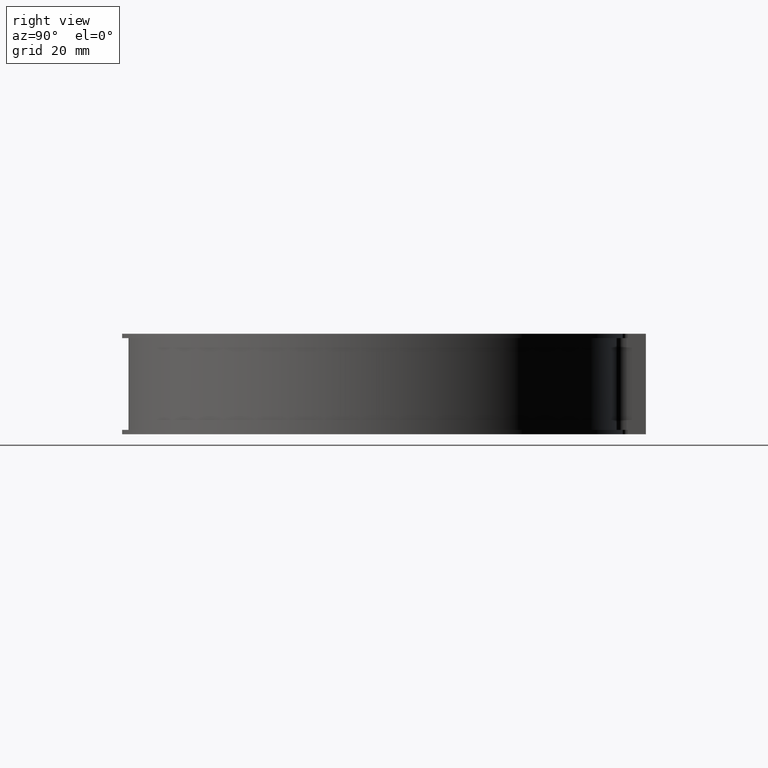
[diagram: clean part render]
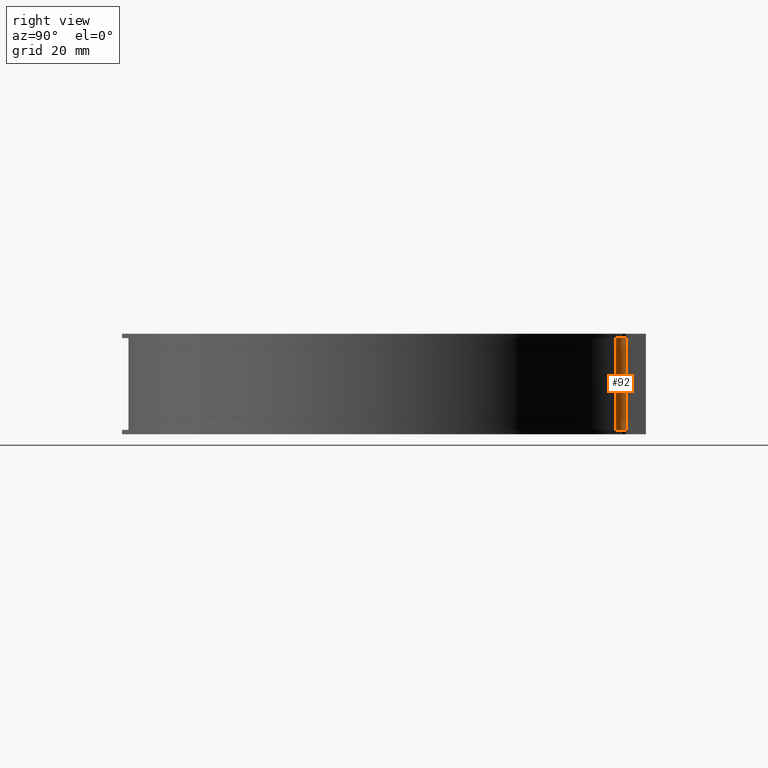
[diagram: same view with one face highlighted and labeled with its STEP entity id]
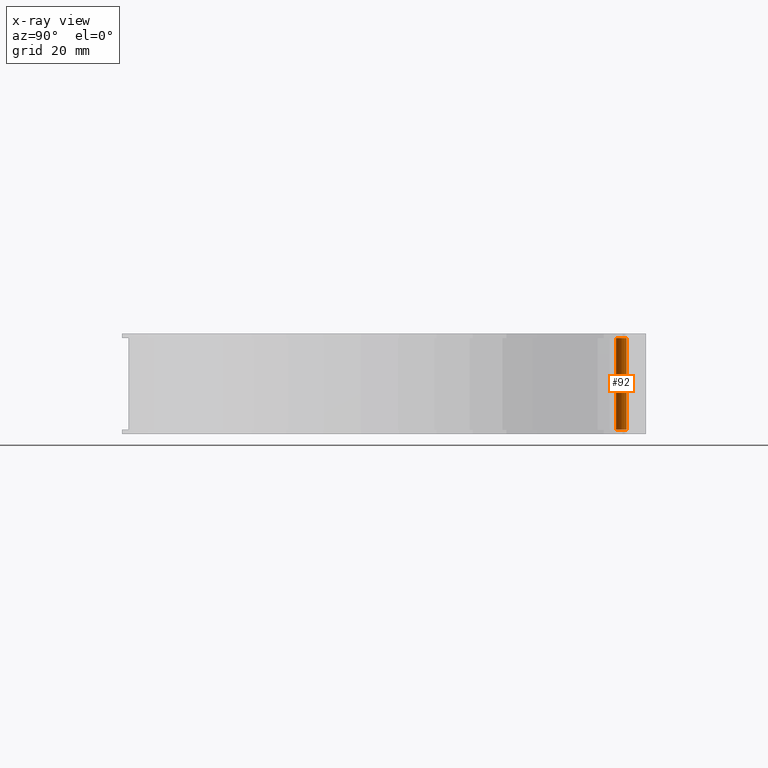
[diagram: x-ray of the same camera — body ghosted, the highlighted face saturated]
A machine part, right view. The second image highlights one B-rep face of the part: STEP entity #92.
The next image is the same camera in x-ray: the body ghosted, the highlighted face saturated — about 0% of this face is hidden behind the body in this view.
In plain terms, the highlighted cylindrical surface (edge-blend (fillet) strip) has radius 3.7 mm, axis along (0, 0, -1).
Its self-contained STEP definition (entity closure, byte-faithful):
#92 = ADVANCED_FACE( '', ( #136 ), #137, .F. );
#136 = FACE_OUTER_BOUND( '', #188, .T. );
#137 = CYLINDRICAL_SURFACE( '', #189, 3.70000000000000 );
#188 = EDGE_LOOP( '', ( #365, #366, #367, #368 ) );
#189 = AXIS2_PLACEMENT_3D( '', #369, #370, #371 );
#365 = ORIENTED_EDGE( '', *, *, #446, .F. );
#366 = ORIENTED_EDGE( '', *, *, #494, .F. );
#367 = ORIENTED_EDGE( '', *, *, #485, .T. );
#368 = ORIENTED_EDGE( '', *, *, #453, .T. );
#369 = CARTESIAN_POINT( '', ( 8.70000000000001, 88.3727899299327, -32.0000000000000 ) );
#370 = DIRECTION( '', ( 0.000000000000000, 0.000000000000000, -1.00000000000000 ) );
#371 = DIRECTION( '', ( -0.0900692840646651, -0.995935501961888, 0.000000000000000 ) );
#446 = EDGE_CURVE( '', #533, #535, #536, .T. );
#453 = EDGE_CURVE( '', #548, #535, #549, .T. );
#485 = EDGE_CURVE( '', #599, #548, #600, .T. );
#494 = EDGE_CURVE( '', #599, #533, #614, .T. );
#533 = VERTEX_POINT( '', #667 );
#535 = VERTEX_POINT( '', #669 );
#536 = CIRCLE( '', #670, 3.70000000000000 );
#548 = VERTEX_POINT( '', #685 );
#549 = LINE( '', #686, #687 );
#599 = VERTEX_POINT( '', #758 );
#600 = CIRCLE( '', #759, 3.70000000000000 );
#614 = LINE( '', #776, #777 );
#667 = CARTESIAN_POINT( '', ( 8.33749999999997, 84.6905903495188, 0.000000000000000 ) );
#669 = CARTESIAN_POINT( '', ( 5.00000000000001, 88.3727899299327, 0.000000000000000 ) );
#670 = AXIS2_PLACEMENT_3D( '', #814, #815, #816 );
#685 = CARTESIAN_POINT( '', ( 5.00000000000001, 88.3727899299327, -32.0000000000000 ) );
#686 = CARTESIAN_POINT( '', ( 5.00000000000001, 88.3727899299327, -32.0000000000000 ) );
#687 = VECTOR( '', #829, 1000.00000000000 );
#758 = CARTESIAN_POINT( '', ( 8.33749999999997, 84.6905903495188, -32.0000000000000 ) );
#759 = AXIS2_PLACEMENT_3D( '', #881, #882, #883 );
#776 = CARTESIAN_POINT( '', ( 8.33749999999997, 84.6905903495188, -32.0000000000000 ) );
#777 = VECTOR( '', #902, 1000.00000000000 );
#814 = CARTESIAN_POINT( '', ( 8.70000000000001, 88.3727899299327, 0.000000000000000 ) );
#815 = DIRECTION( '', ( 0.000000000000000, 0.000000000000000, -1.00000000000000 ) );
#816 = DIRECTION( '', ( -1.00000000000000, -2.69229083471600E-015, 0.000000000000000 ) );
#829 = DIRECTION( '', ( 0.000000000000000, 0.000000000000000, 1.00000000000000 ) );
#881 = CARTESIAN_POINT( '', ( 8.70000000000001, 88.3727899299327, -32.0000000000000 ) );
#882 = DIRECTION( '', ( 0.000000000000000, 0.000000000000000, -1.00000000000000 ) );
#883 = DIRECTION( '', ( -1.00000000000000, -2.69229083471600E-015, 0.000000000000000 ) );
#902 = DIRECTION( '', ( 0.000000000000000, 0.000000000000000, 1.00000000000000 ) );